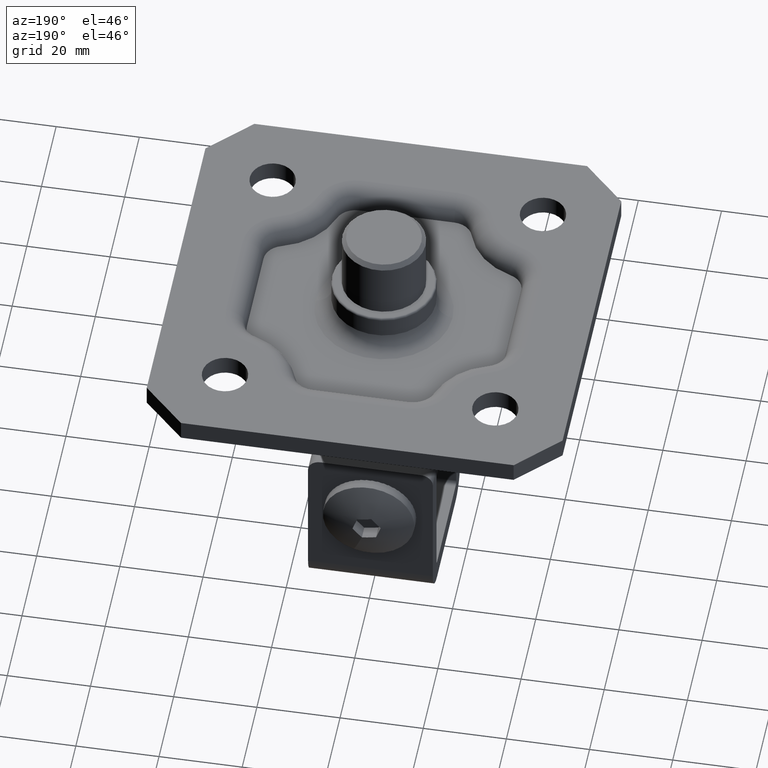
[diagram: clean part render]
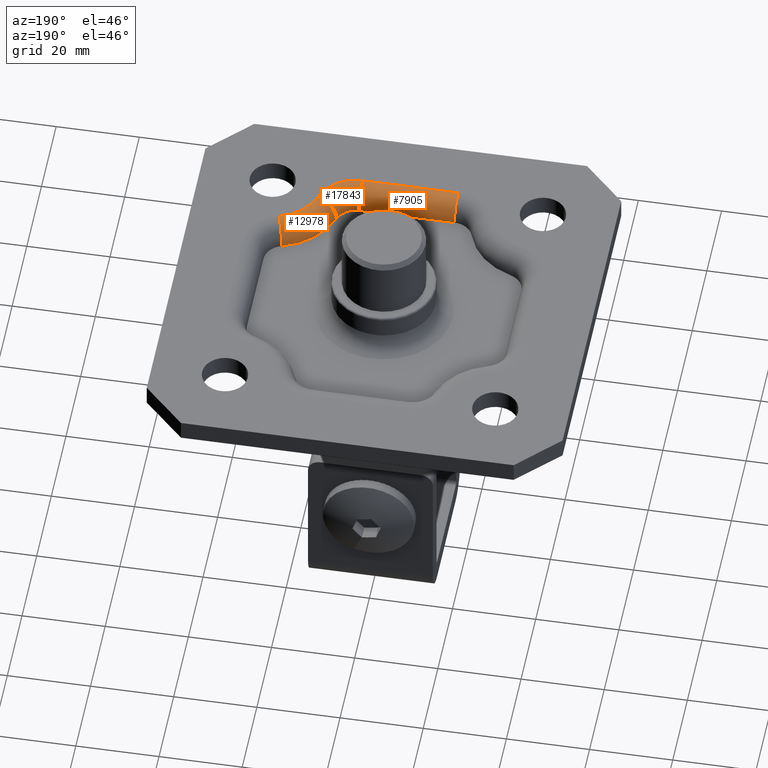
[diagram: same view with one multi-face feature highlighted, each face labeled with its STEP entity id]
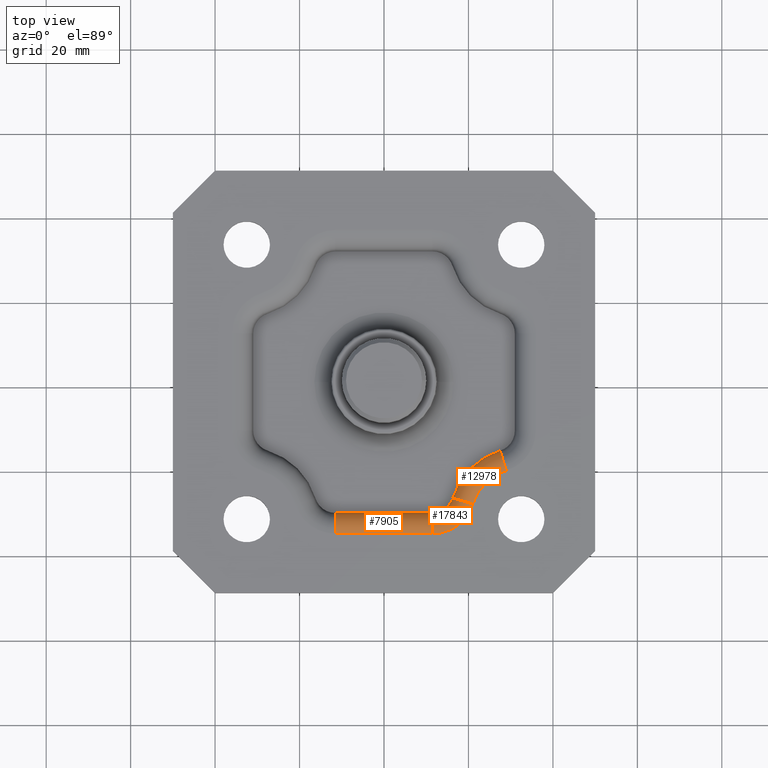
[diagram: same view with one multi-face feature highlighted, each face labeled with its STEP entity id]
A machine part, auxiliary view. The highlighted faces form ONE feature: a constant-radius fillet chain: 3 tangent blend faces with common blend radius 5 mm. The faces share edges in the B-rep.
A second angle (top view) of the same feature is appended — it is thin or edge-on in the first view.
Their STEP definitions:
[1] entity #7905 (Cylinder):
#1307 = ORIENTED_EDGE ( 'NONE', *, *, #16146, .F. ) ;
#1556 = CIRCLE ( 'NONE', #6505, 5.000000000000000000 ) ;
#2015 = EDGE_CURVE ( 'NONE', #14247, #12006, #22985, .T. ) ;
#3209 = DIRECTION ( 'NONE',  ( 1.000000000000000000, 0.0000000000000000000, 0.0000000000000000000 ) ) ;
#4076 = CARTESIAN_POINT ( 'NONE',  ( -11.48215044301633500, -31.00000000000008900, 2.500000000000002200 ) ) ;
#4302 = CIRCLE ( 'NONE', #12431, 5.000000000000000000 ) ;
#5264 = DIRECTION ( 'NONE',  ( 1.000000000000000000, -0.0000000000000000000, -0.0000000000000000000 ) ) ;
#5616 = EDGE_LOOP ( 'NONE', ( #22878, #20892, #1307, #10209 ) ) ;
#5885 = DIRECTION ( 'NONE',  ( 0.0000000000000000000, 0.0000000000000000000, -1.000000000000000000 ) ) ;
#5912 = VECTOR ( 'NONE', #5264, 1000.000000000000000 ) ;
#6505 = AXIS2_PLACEMENT_3D ( 'NONE', #8749, #3209, #17751 ) ;
#7905 = ADVANCED_FACE ( 'NONE', ( #22128 ), #22710, .T. ) ;
#7979 = CARTESIAN_POINT ( 'NONE',  ( 11.48215044301633200, -36.00000000000008500, -2.500000000000002200 ) ) ;
#8127 = LINE ( 'NONE', #15908, #5912 ) ;
#8749 = CARTESIAN_POINT ( 'NONE',  ( 11.48215044301633200, -36.00000000000008500, 2.500000000000002200 ) ) ;
#10209 = ORIENTED_EDGE ( 'NONE', *, *, #10897, .F. ) ;
#10897 = EDGE_CURVE ( 'NONE', #12098, #11117, #8127, .T. ) ;
#11117 = VERTEX_POINT ( 'NONE', #7979 ) ;
#11486 = DIRECTION ( 'NONE',  ( 1.000000000000000000, 0.0000000000000000000, 0.0000000000000000000 ) ) ;
#12006 = VERTEX_POINT ( 'NONE', #4076 ) ;
#12098 = VERTEX_POINT ( 'NONE', #13101 ) ;
#12431 = AXIS2_PLACEMENT_3D ( 'NONE', #20451, #11486, #5885 ) ;
#13101 = CARTESIAN_POINT ( 'NONE',  ( -11.48215044301633500, -36.00000000000008500, -2.500000000000002200 ) ) ;
#14247 = VERTEX_POINT ( 'NONE', #18508 ) ;
#15024 = CARTESIAN_POINT ( 'NONE',  ( -15.56630577812396000, -36.00000000000008500, 2.500000000000002200 ) ) ;
#15096 = DIRECTION ( 'NONE',  ( -1.000000000000000000, 0.0000000000000000000, 0.0000000000000000000 ) ) ;
#15908 = CARTESIAN_POINT ( 'NONE',  ( -3.200364695590367500E-096, -36.00000000000008500, -2.500000000000002200 ) ) ;
#16146 = EDGE_CURVE ( 'NONE', #11117, #14247, #1556, .T. ) ;
#16525 = CARTESIAN_POINT ( 'NONE',  ( -15.56630577812396000, -31.00000000000008900, 2.500000000000002200 ) ) ;
#16778 = DIRECTION ( 'NONE',  ( 0.0000000000000000000, 0.0000000000000000000, 1.000000000000000000 ) ) ;
#17039 = EDGE_CURVE ( 'NONE', #12098, #12006, #4302, .T. ) ;
#17751 = DIRECTION ( 'NONE',  ( 0.0000000000000000000, 0.0000000000000000000, -1.000000000000000000 ) ) ;
#18508 = CARTESIAN_POINT ( 'NONE',  ( 11.48215044301633200, -31.00000000000008900, 2.500000000000002200 ) ) ;
#20451 = CARTESIAN_POINT ( 'NONE',  ( -11.48215044301633500, -36.00000000000008500, 2.500000000000002200 ) ) ;
#20892 = ORIENTED_EDGE ( 'NONE', *, *, #2015, .F. ) ;
#21984 = AXIS2_PLACEMENT_3D ( 'NONE', #15024, #15096, #16778 ) ;
#22093 = DIRECTION ( 'NONE',  ( -1.000000000000000000, 0.0000000000000000000, 0.0000000000000000000 ) ) ;
#22128 = FACE_OUTER_BOUND ( 'NONE', #5616, .T. ) ;
#22710 = CYLINDRICAL_SURFACE ( 'NONE', #21984, 5.000000000000000000 ) ;
#22878 = ORIENTED_EDGE ( 'NONE', *, *, #17039, .T. ) ;
#22985 = LINE ( 'NONE', #16525, #23287 ) ;
#23287 = VECTOR ( 'NONE', #22093, 1000.000000000000000 ) ;
[2] entity #17843 (Torus):
#1425 = DIRECTION ( 'NONE',  ( -1.000000000000000000, 0.0000000000000000000, 0.0000000000000000000 ) ) ;
#1810 = DIRECTION ( 'NONE',  ( 1.000000000000000000, 0.0000000000000000000, 0.0000000000000000000 ) ) ;
#1934 = FACE_OUTER_BOUND ( 'NONE', #4969, .T. ) ;
#4076 = CARTESIAN_POINT ( 'NONE',  ( -11.48215044301633500, -31.00000000000008900, 2.500000000000002200 ) ) ;
#4172 = ORIENTED_EDGE ( 'NONE', *, *, #9607, .F. ) ;
#4302 = CIRCLE ( 'NONE', #12431, 5.000000000000000000 ) ;
#4467 = DIRECTION ( 'NONE',  ( -0.9553567980447139600, -0.2954545454545450800, 0.0000000000000000000 ) ) ;
#4533 = CARTESIAN_POINT ( 'NONE',  ( -21.03571842346349600, -28.95454545454554200, -2.500000000000002200 ) ) ;
#4691 = ORIENTED_EDGE ( 'NONE', *, *, #12163, .F. ) ;
#4969 = EDGE_LOOP ( 'NONE', ( #4691, #4172, #22933, #18652 ) ) ;
#5546 = CARTESIAN_POINT ( 'NONE',  ( -11.48215044301633500, -26.00000000000008900, -2.500000000000002200 ) ) ;
#5885 = DIRECTION ( 'NONE',  ( 0.0000000000000000000, 0.0000000000000000000, -1.000000000000000000 ) ) ;
#6096 = AXIS2_PLACEMENT_3D ( 'NONE', #9206, #10731, #1810 ) ;
#6962 = CIRCLE ( 'NONE', #14013, 10.00000000000002700 ) ;
#7000 = CARTESIAN_POINT ( 'NONE',  ( -11.48215044301633500, -26.00000000000008900, 2.500000000000002200 ) ) ;
#7498 = VERTEX_POINT ( 'NONE', #18396 ) ;
#7819 = AXIS2_PLACEMENT_3D ( 'NONE', #16961, #9751, #4467 ) ;
#8341 = CIRCLE ( 'NONE', #7819, 5.000000000000014200 ) ;
#9206 = CARTESIAN_POINT ( 'NONE',  ( -11.48215044301633500, -26.00000000000008900, 2.500000000000002200 ) ) ;
#9607 = EDGE_CURVE ( 'NONE', #12006, #7498, #14246, .T. ) ;
#9751 = DIRECTION ( 'NONE',  ( -0.2954545454545451400, 0.9553567980447138500, 0.0000000000000000000 ) ) ;
#10731 = DIRECTION ( 'NONE',  ( 0.0000000000000000000, 0.0000000000000000000, 1.000000000000000000 ) ) ;
#11486 = DIRECTION ( 'NONE',  ( 1.000000000000000000, 0.0000000000000000000, 0.0000000000000000000 ) ) ;
#12006 = VERTEX_POINT ( 'NONE', #4076 ) ;
#12098 = VERTEX_POINT ( 'NONE', #13101 ) ;
#12163 = EDGE_CURVE ( 'NONE', #7498, #18032, #8341, .T. ) ;
#12345 = EDGE_CURVE ( 'NONE', #18032, #12098, #6962, .T. ) ;
#12431 = AXIS2_PLACEMENT_3D ( 'NONE', #20451, #11486, #5885 ) ;
#13101 = CARTESIAN_POINT ( 'NONE',  ( -11.48215044301633500, -36.00000000000008500, -2.500000000000002200 ) ) ;
#14013 = AXIS2_PLACEMENT_3D ( 'NONE', #5546, #14402, #21773 ) ;
#14246 = CIRCLE ( 'NONE', #16237, 5.000000000000011500 ) ;
#14402 = DIRECTION ( 'NONE',  ( 0.0000000000000000000, 0.0000000000000000000, 1.000000000000000000 ) ) ;
#16237 = AXIS2_PLACEMENT_3D ( 'NONE', #7000, #21163, #1425 ) ;
#16961 = CARTESIAN_POINT ( 'NONE',  ( -21.03571842346349600, -28.95454545454554200, 2.500000000000002200 ) ) ;
#17039 = EDGE_CURVE ( 'NONE', #12098, #12006, #4302, .T. ) ;
#17843 = ADVANCED_FACE ( 'NONE', ( #1934 ), #20058, .T. ) ;
#18032 = VERTEX_POINT ( 'NONE', #4533 ) ;
#18396 = CARTESIAN_POINT ( 'NONE',  ( -16.25893443323992900, -27.47727272727281500, 2.500000000000002200 ) ) ;
#18652 = ORIENTED_EDGE ( 'NONE', *, *, #12345, .F. ) ;
#20058 = TOROIDAL_SURFACE ( 'NONE', #6096, 10.00000000000000000, 5.000000000000000000 ) ;
#20451 = CARTESIAN_POINT ( 'NONE',  ( -11.48215044301633500, -36.00000000000008500, 2.500000000000002200 ) ) ;
#21163 = DIRECTION ( 'NONE',  ( 0.0000000000000000000, 0.0000000000000000000, -1.000000000000000000 ) ) ;
#21773 = DIRECTION ( 'NONE',  ( 1.000000000000000000, 0.0000000000000000000, 0.0000000000000000000 ) ) ;
#22933 = ORIENTED_EDGE ( 'NONE', *, *, #17039, .F. ) ;
[3] entity #12978 (Torus):
#665 = AXIS2_PLACEMENT_3D ( 'NONE', #20295, #16692, #2098 ) ;
#1988 = EDGE_CURVE ( 'NONE', #22573, #5807, #12778, .T. ) ;
#2098 = DIRECTION ( 'NONE',  ( -0.2954545454545456900, -0.9553567980447135200, 0.0000000000000000000 ) ) ;
#2521 = EDGE_CURVE ( 'NONE', #5807, #18032, #21273, .T. ) ;
#3509 = TOROIDAL_SURFACE ( 'NONE', #17547, 11.99999999999999300, 5.000000000000000000 ) ;
#3520 = ORIENTED_EDGE ( 'NONE', *, *, #12163, .T. ) ;
#3817 = AXIS2_PLACEMENT_3D ( 'NONE', #3854, #22139, #14928 ) ;
#3854 = CARTESIAN_POINT ( 'NONE',  ( -32.50000000000009900, -32.50000000000008500, -2.500000000000002200 ) ) ;
#4467 = DIRECTION ( 'NONE',  ( -0.9553567980447139600, -0.2954545454545450800, 0.0000000000000000000 ) ) ;
#4495 = CARTESIAN_POINT ( 'NONE',  ( -32.50000000000009900, -32.50000000000008500, 2.500000000000002200 ) ) ;
#4533 = CARTESIAN_POINT ( 'NONE',  ( -21.03571842346349600, -28.95454545454554200, -2.500000000000002200 ) ) ;
#4719 = DIRECTION ( 'NONE',  ( 1.000000000000000000, 0.0000000000000000000, 0.0000000000000000000 ) ) ;
#5786 = AXIS2_PLACEMENT_3D ( 'NONE', #8663, #21188, #8822 ) ;
#5807 = VERTEX_POINT ( 'NONE', #16235 ) ;
#6724 = CIRCLE ( 'NONE', #5786, 17.00000000000004300 ) ;
#7314 = EDGE_LOOP ( 'NONE', ( #3520, #15146, #12127, #7854 ) ) ;
#7498 = VERTEX_POINT ( 'NONE', #18396 ) ;
#7819 = AXIS2_PLACEMENT_3D ( 'NONE', #16961, #9751, #4467 ) ;
#7854 = ORIENTED_EDGE ( 'NONE', *, *, #17769, .F. ) ;
#8341 = CIRCLE ( 'NONE', #7819, 5.000000000000014200 ) ;
#8663 = CARTESIAN_POINT ( 'NONE',  ( -32.50000000000009900, -32.50000000000008500, 2.500000000000002200 ) ) ;
#8822 = DIRECTION ( 'NONE',  ( -1.000000000000000000, 0.0000000000000000000, 0.0000000000000000000 ) ) ;
#9751 = DIRECTION ( 'NONE',  ( -0.2954545454545451400, 0.9553567980447138500, 0.0000000000000000000 ) ) ;
#11834 = DIRECTION ( 'NONE',  ( 0.0000000000000000000, 0.0000000000000000000, 1.000000000000000000 ) ) ;
#12127 = ORIENTED_EDGE ( 'NONE', *, *, #1988, .F. ) ;
#12163 = EDGE_CURVE ( 'NONE', #7498, #18032, #8341, .T. ) ;
#12778 = CIRCLE ( 'NONE', #665, 5.000000000000016000 ) ;
#12978 = ADVANCED_FACE ( 'NONE', ( #15976 ), #3509, .T. ) ;
#14928 = DIRECTION ( 'NONE',  ( 1.000000000000000000, 0.0000000000000000000, 0.0000000000000000000 ) ) ;
#15146 = ORIENTED_EDGE ( 'NONE', *, *, #2521, .F. ) ;
#15569 = CARTESIAN_POINT ( 'NONE',  ( -27.47727272727281500, -16.25893443323991900, 2.500000000000002200 ) ) ;
#15976 = FACE_OUTER_BOUND ( 'NONE', #7314, .T. ) ;
#16235 = CARTESIAN_POINT ( 'NONE',  ( -28.95454545454554900, -21.03571842346348600, -2.500000000000002200 ) ) ;
#16692 = DIRECTION ( 'NONE',  ( -0.9553567980447137400, 0.2954545454545457500, 8.679247206344999100E-016 ) ) ;
#16961 = CARTESIAN_POINT ( 'NONE',  ( -21.03571842346349600, -28.95454545454554200, 2.500000000000002200 ) ) ;
#17547 = AXIS2_PLACEMENT_3D ( 'NONE', #4495, #11834, #4719 ) ;
#17769 = EDGE_CURVE ( 'NONE', #7498, #22573, #6724, .T. ) ;
#18032 = VERTEX_POINT ( 'NONE', #4533 ) ;
#18396 = CARTESIAN_POINT ( 'NONE',  ( -16.25893443323992900, -27.47727272727281500, 2.500000000000002200 ) ) ;
#20295 = CARTESIAN_POINT ( 'NONE',  ( -28.95454545454554600, -21.03571842346348900, 2.500000000000002200 ) ) ;
#21188 = DIRECTION ( 'NONE',  ( 0.0000000000000000000, 0.0000000000000000000, 1.000000000000000000 ) ) ;
#21273 = CIRCLE ( 'NONE', #3817, 12.00000000000002500 ) ;
#22139 = DIRECTION ( 'NONE',  ( -0.0000000000000000000, -0.0000000000000000000, -1.000000000000000000 ) ) ;
#22573 = VERTEX_POINT ( 'NONE', #15569 ) ;